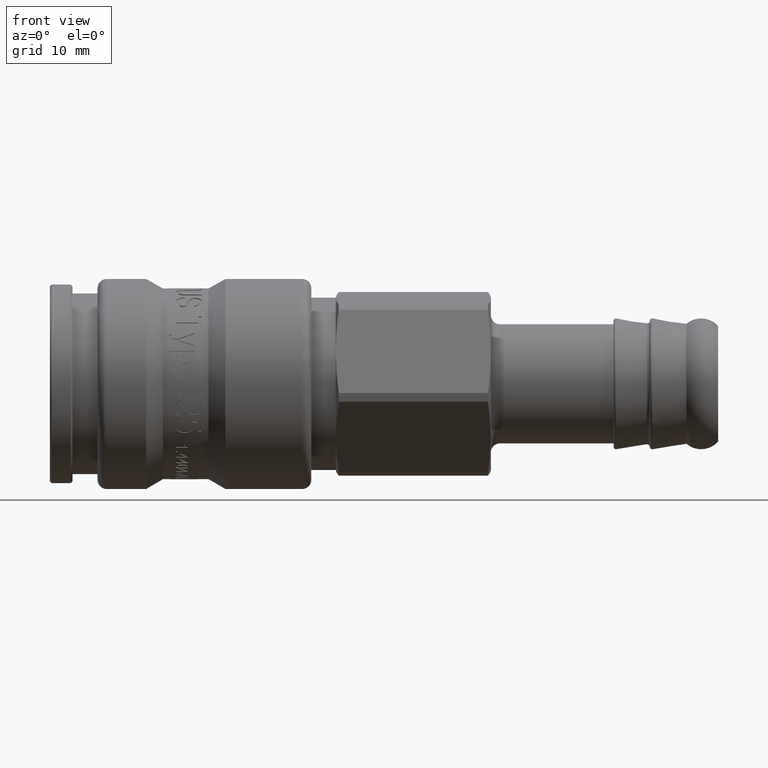
[diagram: clean part render]
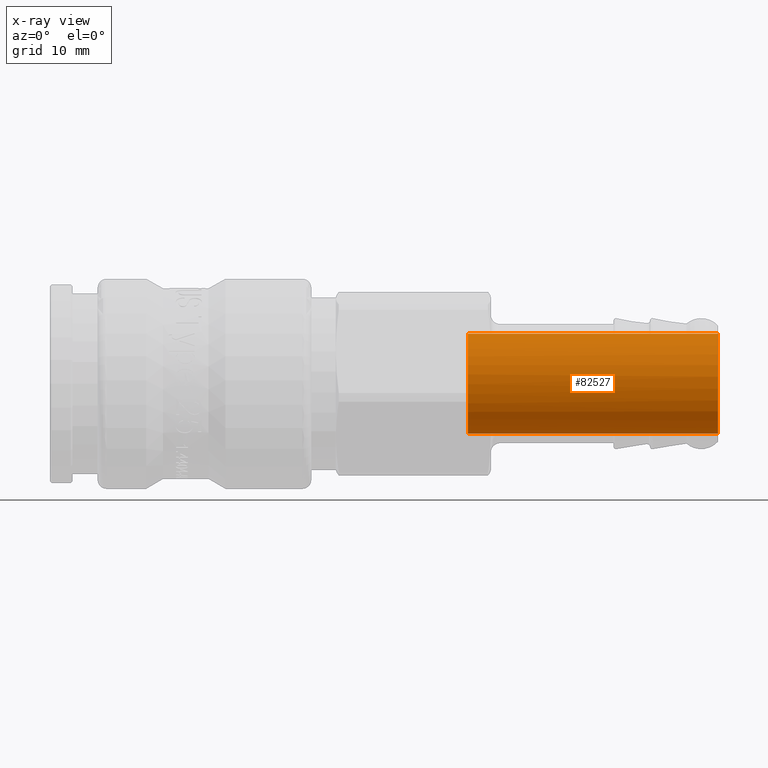
[diagram: x-ray — body ghosted, one internal face saturated and labeled with its STEP entity id]
A machine part, front view, then the same camera in x-ray: the body is ghosted and one INTERNAL B-rep face — a face not visible from any outside direction — is saturated and labeled: STEP entity #82527.
In plain terms, the highlighted cylindrical surface (bore or boss wall) has radius 5.5 mm, axis along (-1, 0, -0).
Its self-contained STEP definition (entity closure, byte-faithful):
#81144=CARTESIAN_POINT('',(45.970712647516443,-5.099626503778532,2.060050854216816));
#81145=VERTEX_POINT('',#81144);
#81146=CARTESIAN_POINT('',(45.970712647516443,1.081615E-014,-2.714597E-030));
#81147=DIRECTION('',(-1.0,3.377761E-016,-1.364484E-016));
#81148=DIRECTION('',(3.642951E-016,0.927204818868826,-0.374554700766694));
#81149=AXIS2_PLACEMENT_3D('',#81146,#81147,#81148);
#81150=CIRCLE('',#81149,5.499999999999999);
#81151=EDGE_CURVE('',#81145,#81145,#81150,.T.);
#82508=CARTESIAN_POINT('',(59.5,5.500544E-015,-1.380507E-030));
#82509=DIRECTION('',(-1.0,3.928960E-016,-9.860761E-032));
#82510=DIRECTION('',(3.642951E-016,0.927204818868826,-0.374554700766694));
#82511=AXIS2_PLACEMENT_3D('',#82508,#82509,#82510);
#82512=CYLINDRICAL_SURFACE('',#82511,5.5);
#82513=ORIENTED_EDGE('',*,*,#81151,.T.);
#82514=EDGE_LOOP('',(#82513));
#82515=FACE_OUTER_BOUND('',#82514,.T.);
#82516=CARTESIAN_POINT('',(73.5,5.099626503778541,-2.060050854216815));
#82517=VERTEX_POINT('',#82516);
#82518=CARTESIAN_POINT('',(73.5,0.0,0.0));
#82519=DIRECTION('',(-1.0,3.377761E-016,-1.364484E-016));
#82520=DIRECTION('',(3.642951E-016,0.927204818868826,-0.374554700766694));
#82521=AXIS2_PLACEMENT_3D('',#82518,#82519,#82520);
#82522=CIRCLE('',#82521,5.499999999999997);
#82523=EDGE_CURVE('',#82517,#82517,#82522,.T.);
#82524=ORIENTED_EDGE('',*,*,#82523,.F.);
#82525=EDGE_LOOP('',(#82524));
#82526=FACE_BOUND('',#82525,.T.);
#82527=ADVANCED_FACE('',(#82515,#82526),#82512,.F.);